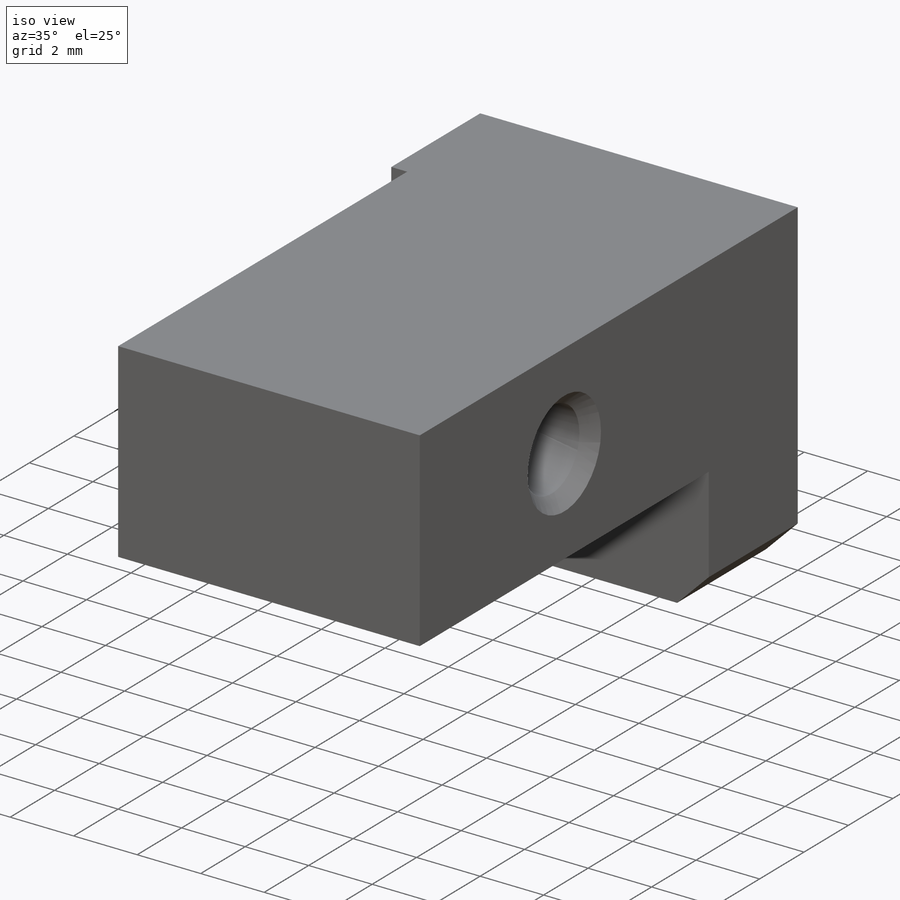
[diagram: iso view]
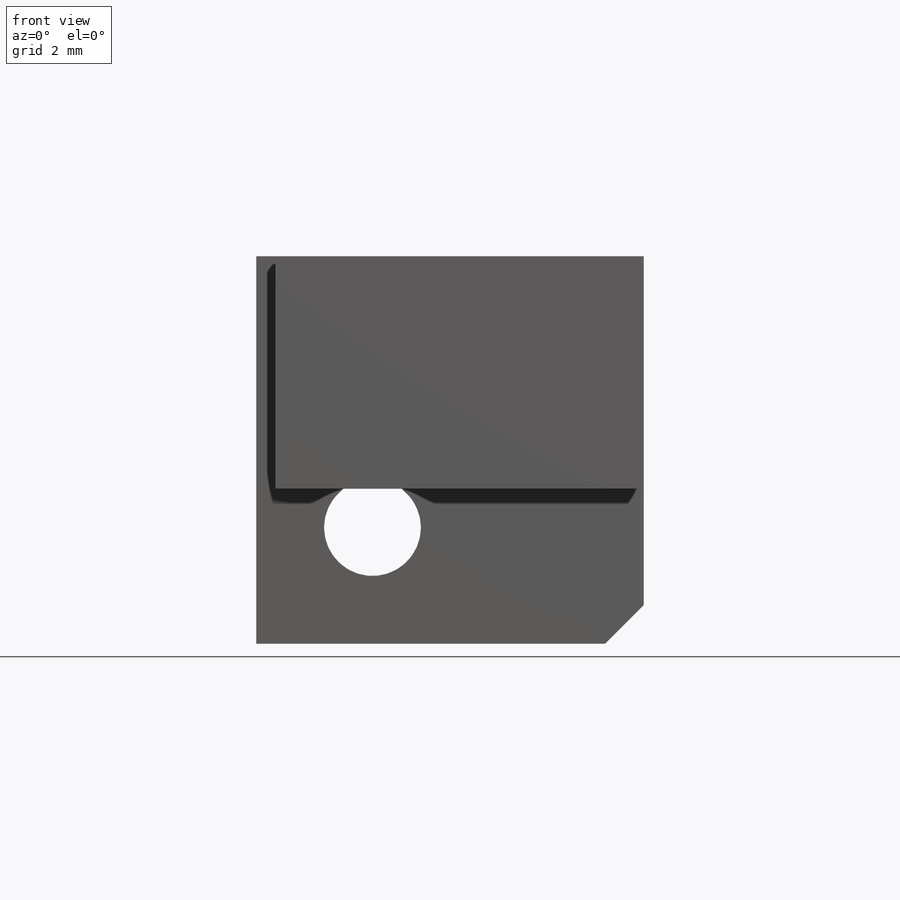
[diagram: front view]
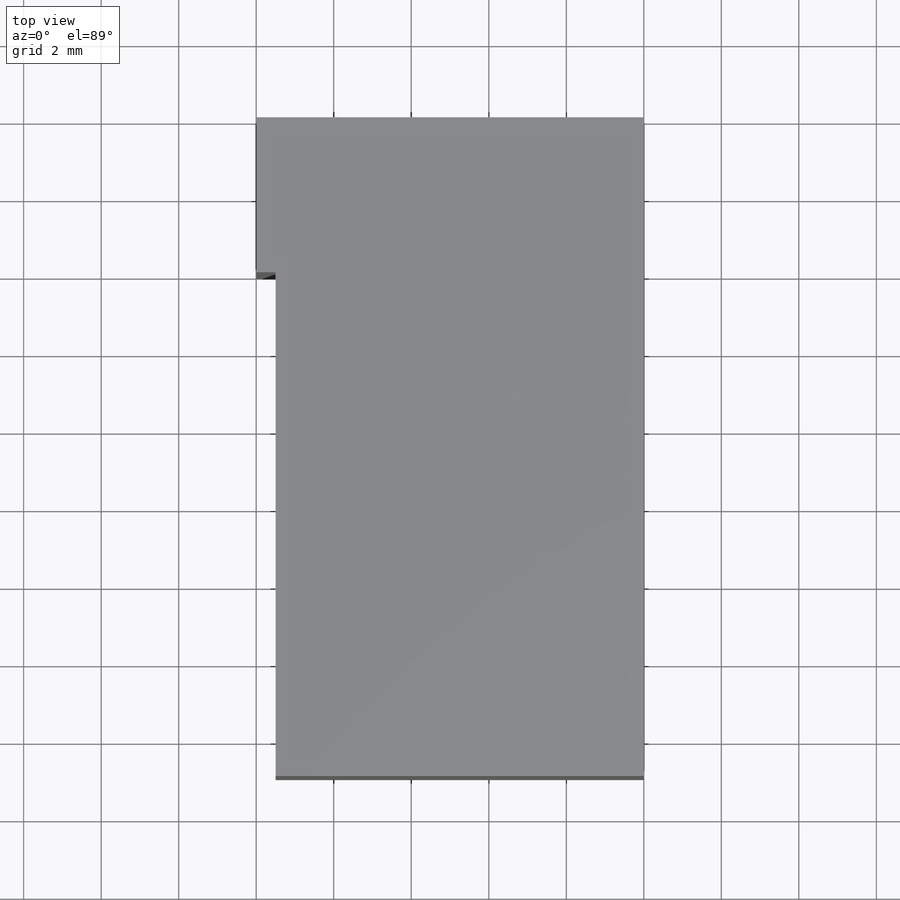
[diagram: top view]
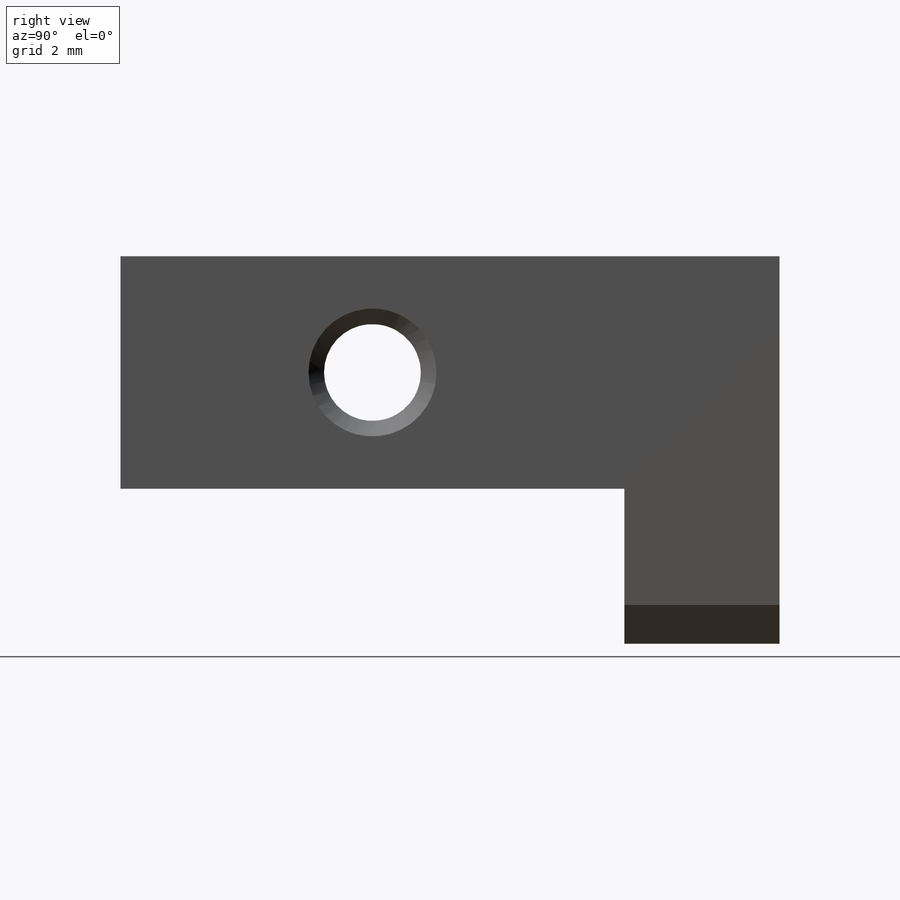
[diagram: right view]
SOLIDWORKS PART (.sldprt)
format: sldprt  version: not decoded by parser v0  size: 228,864 bytes
history: native  units: mm
features: sketch x6, plane x3, hole x2, material x1, extrude x1, cut_extrude x1, chamfer x1 (+13 scaffold rows collapsed)
feature tree (28):
  scaffold x13  (default folders/planes/origin — collapsed)
  material  "2024-T4"
  plane  "Спереди"
  plane  "Сверху"
  plane  "Справа"
  sketch  "Эскиз1"  dims[D1=10.0mm D2=10.0mm]
  extrude  "Бобышка-Вытянуть1"  Depth=17mm
  sketch  "Эскиз7"  dims[c1.D1=9.5mm c1.D2=10.0mm c2.D2=~0.331777deg c3.D2=6.0mm]
  cut_extrude  "Вырез-Вытянуть1"  Depth=4mm
  hole  "Отверстие обработанное метчиком M31"  [1 undecoded]
  sketch  "Эскиз4"  dims[c1.D1=3.0mm c1.D2=6.0mm c2.D1=10.5mm c2.D2=3.0mm]
  sketch  "Эскиз3"  dims[hole-wizard template sketch: 46 standard entries collapsed; hole parameters kept: c15.Диаметр резьбы=2.5mm c15.Глубина проходного сверла=9.5mm c15.Диаметр передней зенковки=3.3mm c15.D4=~3.666174mm c15.Угол передней зенковки=90.0deg c15.Диаметр задней зенковки=3.3mm c15.D6=~9.919017mm c15.Угол задней зенковки=90.0deg]
  hole  "Отверстие обработанное метчиком M32"  [1 undecoded]
  sketch  "Эскиз6"  dims[c1.D1=2.0mm c1.D2=4.0mm c1.D3=4.0mm c1.D4=2.0mm c2.D1=6.0mm c2.D2=2.0mm c2.D3=3.0mm c2.D4=4.0mm c3.D1=3.0mm c3.D2=4.0mm]
  sketch  "Эскиз5"  dims[hole-wizard template sketch: 39 standard entries collapsed; hole parameters kept: c13.Диаметр сверла=2.5mm c13.Глубина сверла=10.5mm c13.Диаметр передней зенковки=3.3mm c13.D4=~33.297463mm c13.Угол передней зенковки=90.0deg c14.D5=~14.816244mm c14.Угол заточки сверла=118.0deg]
  chamfer  "Фаска1"  Distance=1mm Angle=45deg
decode coverage: 9 of 11 modeling features carry decoded parameters
note: ~ marks probable driven/reference dimensions
note: 2 parameter values undecoded
note: suppression state not decoded; provenance and decode notes live in map.json
